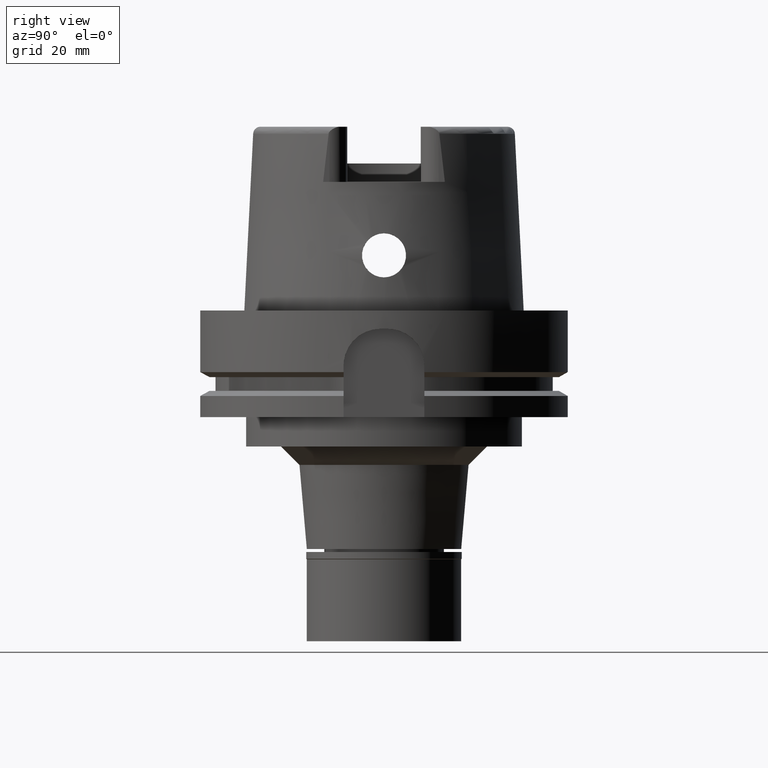
[diagram: clean part render]
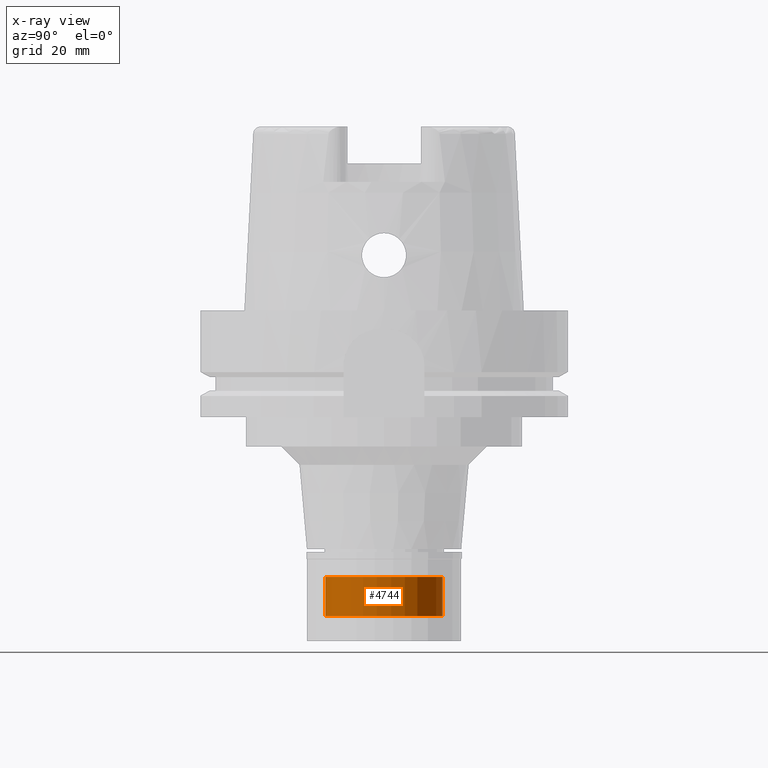
[diagram: x-ray — body ghosted, one internal face saturated and labeled with its STEP entity id]
A machine part, right view, then the same camera in x-ray: the body is ghosted and one INTERNAL B-rep face — a face not visible from any outside direction — is saturated and labeled: STEP entity #4744.
In plain terms, the highlighted cylindrical surface (partial cylindrical patch) has radius 16 mm, axis along (0, 0, -1).
Its self-contained STEP definition (entity closure, byte-faithful):
#29 = EDGE_CURVE ( 'NONE', #1183, #710, #1779, .T. ) ;
#408 = LINE ( 'NONE', #5628, #3040 ) ;
#687 = DIRECTION ( 'NONE',  ( 0.0000000000000000000, 0.0000000000000000000, 1.000000000000000000 ) ) ;
#710 = VERTEX_POINT ( 'NONE', #4529 ) ;
#1183 = VERTEX_POINT ( 'NONE', #2394 ) ;
#1259 = CARTESIAN_POINT ( 'NONE',  ( 0.0000000000000000000, -16.00000000000000000, -17.50000000000000000 ) ) ;
#1328 = VERTEX_POINT ( 'NONE', #4757 ) ;
#1366 = ORIENTED_EDGE ( 'NONE', *, *, #3816, .T. ) ;
#1418 = AXIS2_PLACEMENT_3D ( 'NONE', #3060, #1764, #3523 ) ;
#1438 = ORIENTED_EDGE ( 'NONE', *, *, #29, .T. ) ;
#1639 = FACE_OUTER_BOUND ( 'NONE', #3389, .T. ) ;
#1705 = LINE ( 'NONE', #1259, #4632 ) ;
#1764 = DIRECTION ( 'NONE',  ( 0.0000000000000000000, 0.0000000000000000000, -1.000000000000000000 ) ) ;
#1774 = EDGE_CURVE ( 'NONE', #710, #1328, #1705, .T. ) ;
#1779 = CIRCLE ( 'NONE', #1418, 16.00000000000000000 ) ;
#1919 = CARTESIAN_POINT ( 'NONE',  ( 0.0000000000000000000, 0.0000000000000000000, -6.799999999999999822 ) ) ;
#2394 = CARTESIAN_POINT ( 'NONE',  ( 0.0000000000000000000, 16.00000000000000000, -17.50000000000000000 ) ) ;
#2425 = EDGE_CURVE ( 'NONE', #1183, #5103, #408, .T. ) ;
#2915 = ORIENTED_EDGE ( 'NONE', *, *, #1774, .T. ) ;
#3040 = VECTOR ( 'NONE', #3938, 1000.000000000000000 ) ;
#3060 = CARTESIAN_POINT ( 'NONE',  ( 0.0000000000000000000, 0.0000000000000000000, -17.50000000000000000 ) ) ;
#3136 = AXIS2_PLACEMENT_3D ( 'NONE', #5113, #5220, #5619 ) ;
#3359 = CYLINDRICAL_SURFACE ( 'NONE', #3136, 16.00000000000000000 ) ;
#3389 = EDGE_LOOP ( 'NONE', ( #1438, #2915, #1366, #5534 ) ) ;
#3458 = DIRECTION ( 'NONE',  ( 0.0000000000000000000, 0.0000000000000000000, 1.000000000000000000 ) ) ;
#3471 = CARTESIAN_POINT ( 'NONE',  ( 0.0000000000000000000, 16.00000000000000000, -6.799999999999999822 ) ) ;
#3523 = DIRECTION ( 'NONE',  ( 0.0000000000000000000, 1.000000000000000000, 0.0000000000000000000 ) ) ;
#3816 = EDGE_CURVE ( 'NONE', #1328, #5103, #5053, .T. ) ;
#3938 = DIRECTION ( 'NONE',  ( 0.0000000000000000000, 0.0000000000000000000, 1.000000000000000000 ) ) ;
#4529 = CARTESIAN_POINT ( 'NONE',  ( 0.0000000000000000000, -16.00000000000000000, -17.50000000000000000 ) ) ;
#4535 = DIRECTION ( 'NONE',  ( 0.0000000000000000000, -1.000000000000000000, 0.0000000000000000000 ) ) ;
#4596 = AXIS2_PLACEMENT_3D ( 'NONE', #1919, #687, #4535 ) ;
#4632 = VECTOR ( 'NONE', #3458, 1000.000000000000000 ) ;
#4744 = ADVANCED_FACE ( 'NONE', ( #1639 ), #3359, .F. ) ;
#4757 = CARTESIAN_POINT ( 'NONE',  ( 0.0000000000000000000, -16.00000000000000000, -6.799999999999999822 ) ) ;
#5053 = CIRCLE ( 'NONE', #4596, 16.00000000000000000 ) ;
#5103 = VERTEX_POINT ( 'NONE', #3471 ) ;
#5113 = CARTESIAN_POINT ( 'NONE',  ( 0.0000000000000000000, 0.0000000000000000000, 0.0000000000000000000 ) ) ;
#5220 = DIRECTION ( 'NONE',  ( 0.0000000000000000000, 0.0000000000000000000, -1.000000000000000000 ) ) ;
#5534 = ORIENTED_EDGE ( 'NONE', *, *, #2425, .F. ) ;
#5619 = DIRECTION ( 'NONE',  ( 0.0000000000000000000, -1.000000000000000000, 0.0000000000000000000 ) ) ;
#5628 = CARTESIAN_POINT ( 'NONE',  ( 0.0000000000000000000, 16.00000000000000000, -17.50000000000000000 ) ) ;